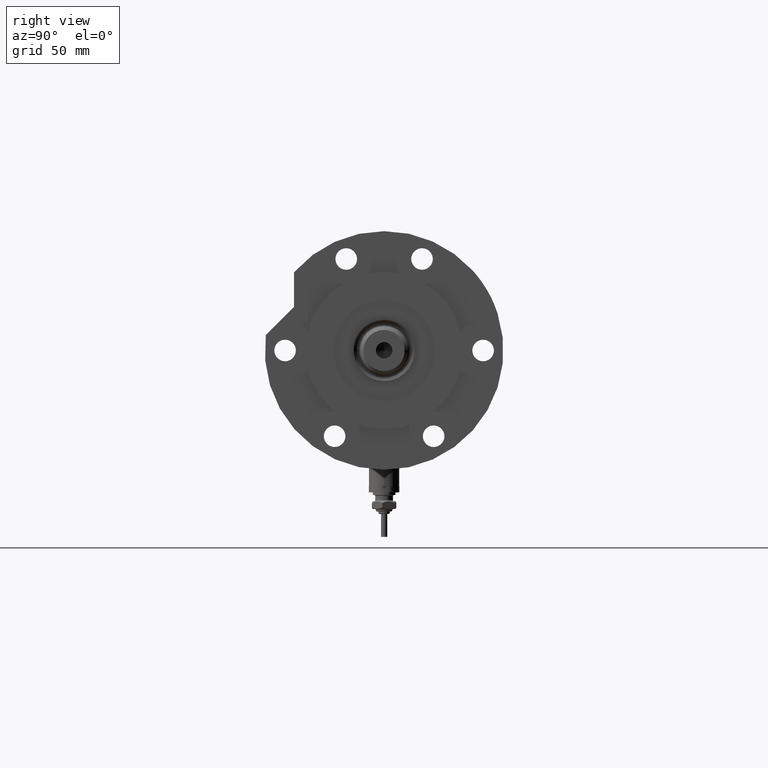
[diagram: clean part render]
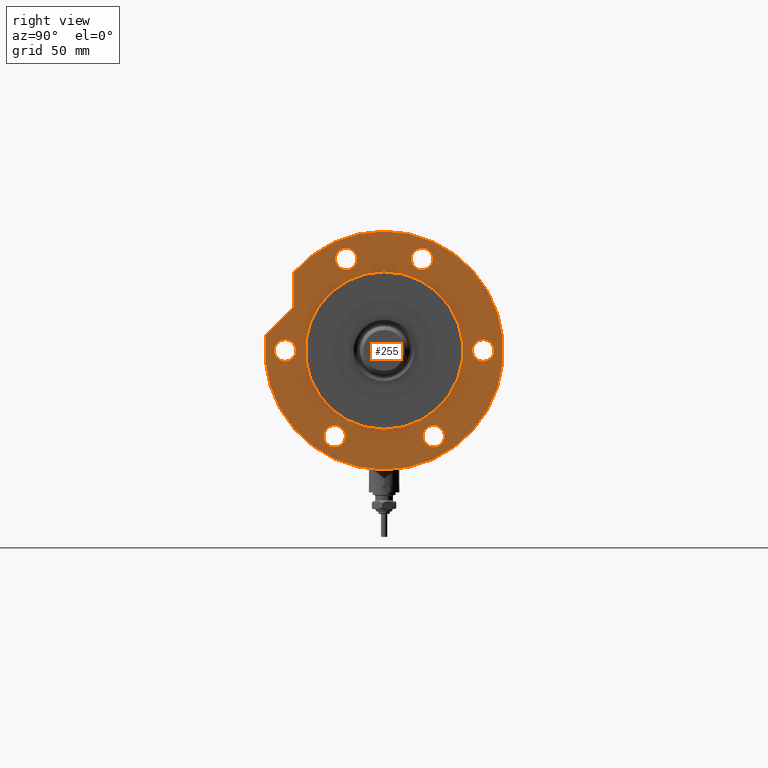
[diagram: same view with one face highlighted and labeled with its STEP entity id]
A machine part, right view. The second image highlights one B-rep face of the part: STEP entity #255.
In plain terms, the highlighted planar face has unit normal (1, 0, -0).
Its self-contained STEP definition (entity closure, byte-faithful):
#44 = CARTESIAN_POINT ( 'NONE',  ( 31.00000000000000711, 3.796405077356795904E-15, 17.00000000000000000 ) ) ;
#67 = AXIS2_PLACEMENT_3D ( 'NONE', #5429, #4180, #5544 ) ;
#92 = AXIS2_PLACEMENT_3D ( 'NONE', #1840, #3734, #3855 ) ;
#167 = EDGE_LOOP ( 'NONE', ( #4337, #3455, #3083, #5923, #3396 ) ) ;
#171 = CARTESIAN_POINT ( 'NONE',  ( 36.03130176794011419, -14.92465386223865842, 17.00000000000000000 ) ) ;
#216 = ORIENTED_EDGE ( 'NONE', *, *, #2151, .F. ) ;
#255 = ADVANCED_FACE ( 'NONE', ( #5977, #7132, #1621, #4109, #7772, #4184, #6621, #6550 ), #5937, .T. ) ;
#260 = DIRECTION ( 'NONE',  ( 0.000000000000000000, 0.000000000000000000, 1.000000000000000000 ) ) ;
#374 = EDGE_CURVE ( 'NONE', #5448, #2583, #6136, .T. ) ;
#405 = CARTESIAN_POINT ( 'NONE',  ( 0.000000000000000000, 0.000000000000000000, 17.00000000000000000 ) ) ;
#410 = DIRECTION ( 'NONE',  ( 1.000000000000000000, -1.019675812477181804E-15, 0.000000000000000000 ) ) ;
#422 = CIRCLE ( 'NONE', #6227, 31.00000000000000711 ) ;
#441 = CIRCLE ( 'NONE', #7247, 4.250000000000003553 ) ;
#445 = CIRCLE ( 'NONE', #1350, 4.250000000000000888 ) ;
#485 = ORIENTED_EDGE ( 'NONE', *, *, #5894, .F. ) ;
#506 = DIRECTION ( 'NONE',  ( 0.000000000000000000, 0.000000000000000000, 1.000000000000000000 ) ) ;
#526 = EDGE_LOOP ( 'NONE', ( #5947, #2553 ) ) ;
#781 = EDGE_CURVE ( 'NONE', #4695, #6623, #1379, .T. ) ;
#799 = DIRECTION ( 'NONE',  ( 0.000000000000000000, 0.000000000000000000, 1.000000000000000000 ) ) ;
#804 = CARTESIAN_POINT ( 'NONE',  ( -38.02499074759315079, 19.49999999999992539, 17.00000000000000000 ) ) ;
#830 = EDGE_LOOP ( 'NONE', ( #1718, #4603 ) ) ;
#942 = LINE ( 'NONE', #1553, #4576 ) ;
#1025 = CARTESIAN_POINT ( 'NONE',  ( 31.78130176794011064, -14.92465386223865842, 17.00000000000000000 ) ) ;
#1071 = VERTEX_POINT ( 'NONE', #2360 ) ;
#1134 = DIRECTION ( 'NONE',  ( 1.000000000000000000, 0.000000000000000000, 0.000000000000000000 ) ) ;
#1253 = VECTOR ( 'NONE', #6881, 999.9999999999998863 ) ;
#1350 = AXIS2_PLACEMENT_3D ( 'NONE', #2649, #5124, #2044 ) ;
#1379 = CIRCLE ( 'NONE', #92, 46.99999999999999289 ) ;
#1454 = EDGE_CURVE ( 'NONE', #7564, #5592, #422, .T. ) ;
#1463 = CIRCLE ( 'NONE', #5599, 4.250000000000003553 ) ;
#1471 = EDGE_CURVE ( 'NONE', #1602, #4695, #2886, .T. ) ;
#1506 = EDGE_CURVE ( 'NONE', #1071, #5062, #942, .T. ) ;
#1553 = CARTESIAN_POINT ( 'NONE',  ( 3.617158501555293296E-14, 35.47361286101151734, 17.00000000000000000 ) ) ;
#1556 = VERTEX_POINT ( 'NONE', #4191 ) ;
#1602 = VERTEX_POINT ( 'NONE', #4233 ) ;
#1621 = FACE_BOUND ( 'NONE', #6460, .T. ) ;
#1655 = EDGE_CURVE ( 'NONE', #1556, #4058, #2627, .T. ) ;
#1702 = EDGE_LOOP ( 'NONE', ( #485, #1721 ) ) ;
#1718 = ORIENTED_EDGE ( 'NONE', *, *, #6191, .F. ) ;
#1721 = ORIENTED_EDGE ( 'NONE', *, *, #374, .F. ) ;
#1786 = ORIENTED_EDGE ( 'NONE', *, *, #5590, .F. ) ;
#1840 = CARTESIAN_POINT ( 'NONE',  ( 0.000000000000000000, 0.000000000000000000, 17.00000000000000000 ) ) ;
#1844 = AXIS2_PLACEMENT_3D ( 'NONE', #3709, #3751, #1134 ) ;
#1984 = DIRECTION ( 'NONE',  ( 0.000000000000000000, 0.000000000000000000, 1.000000000000000000 ) ) ;
#2013 = CARTESIAN_POINT ( 'NONE',  ( 26.34789210900296652, 26.34789210900323297, 17.00000000000000000 ) ) ;
#2044 = DIRECTION ( 'NONE',  ( 1.000000000000000000, 0.000000000000000000, 0.000000000000000000 ) ) ;
#2151 = EDGE_CURVE ( 'NONE', #3817, #5571, #1463, .T. ) ;
#2191 = CARTESIAN_POINT ( 'NONE',  ( 0.000000000000000000, 0.000000000000000000, 17.00000000000000000 ) ) ;
#2268 = AXIS2_PLACEMENT_3D ( 'NONE', #5520, #506, #2986 ) ;
#2333 = CARTESIAN_POINT ( 'NONE',  ( 4.250000000000000888, -39.00000000000000000, 17.00000000000000000 ) ) ;
#2360 = CARTESIAN_POINT ( 'NONE',  ( 17.22217135699461110, 35.47361286101150313, 17.00000000000000000 ) ) ;
#2377 = ORIENTED_EDGE ( 'NONE', *, *, #5375, .F. ) ;
#2522 = ORIENTED_EDGE ( 'NONE', *, *, #1454, .F. ) ;
#2553 = ORIENTED_EDGE ( 'NONE', *, *, #3782, .F. ) ;
#2583 = VERTEX_POINT ( 'NONE', #804 ) ;
#2588 = CARTESIAN_POINT ( 'NONE',  ( -33.77499074759302289, -19.50000000000015277, 17.00000000000000000 ) ) ;
#2627 = CIRCLE ( 'NONE', #1844, 4.250000000000000888 ) ;
#2649 = CARTESIAN_POINT ( 'NONE',  ( 0.000000000000000000, 39.00000000000000000, 17.00000000000000000 ) ) ;
#2799 = DIRECTION ( 'NONE',  ( 0.000000000000000000, 0.000000000000000000, 1.000000000000000000 ) ) ;
#2825 = DIRECTION ( 'NONE',  ( 0.000000000000000000, 0.000000000000000000, 1.000000000000000000 ) ) ;
#2884 = DIRECTION ( 'NONE',  ( 0.000000000000000000, 0.000000000000000000, 1.000000000000000000 ) ) ;
#2886 = CIRCLE ( 'NONE', #7234, 46.99999999999999289 ) ;
#2933 = CARTESIAN_POINT ( 'NONE',  ( 0.000000000000000000, -39.00000000000000000, 17.00000000000000000 ) ) ;
#2964 = VERTEX_POINT ( 'NONE', #6290 ) ;
#2979 = DIRECTION ( 'NONE',  ( 1.000000000000000000, 0.000000000000000000, 0.000000000000000000 ) ) ;
#2986 = DIRECTION ( 'NONE',  ( 1.000000000000000000, 0.000000000000000000, 0.000000000000000000 ) ) ;
#3009 = EDGE_LOOP ( 'NONE', ( #3635, #3112 ) ) ;
#3016 = CARTESIAN_POINT ( 'NONE',  ( 30.83217135699462830, 35.47361286101148892, 17.00000000000000000 ) ) ;
#3083 = ORIENTED_EDGE ( 'NONE', *, *, #1471, .T. ) ;
#3112 = ORIENTED_EDGE ( 'NONE', *, *, #3501, .F. ) ;
#3153 = EDGE_CURVE ( 'NONE', #4967, #3935, #441, .T. ) ;
#3208 = CARTESIAN_POINT ( 'NONE',  ( -31.00000000000000711, 0.000000000000000000, 17.00000000000000000 ) ) ;
#3283 = DIRECTION ( 'NONE',  ( 1.000000000000000000, 0.000000000000000000, 0.000000000000000000 ) ) ;
#3396 = ORIENTED_EDGE ( 'NONE', *, *, #6134, .T. ) ;
#3426 = AXIS2_PLACEMENT_3D ( 'NONE', #2588, #799, #3283 ) ;
#3438 = CIRCLE ( 'NONE', #4087, 31.00000000000000711 ) ;
#3455 = ORIENTED_EDGE ( 'NONE', *, *, #7552, .F. ) ;
#3469 = DIRECTION ( 'NONE',  ( 0.000000000000000000, 0.000000000000000000, 1.000000000000000000 ) ) ;
#3485 = ORIENTED_EDGE ( 'NONE', *, *, #5483, .F. ) ;
#3501 = EDGE_CURVE ( 'NONE', #6873, #7388, #445, .T. ) ;
#3540 = CARTESIAN_POINT ( 'NONE',  ( 31.78130176794011064, 14.92465386223865842, 17.00000000000000000 ) ) ;
#3568 = CIRCLE ( 'NONE', #67, 4.250000000000003553 ) ;
#3575 = CARTESIAN_POINT ( 'NONE',  ( 4.250000000000000888, 39.00000000000000000, 17.00000000000000000 ) ) ;
#3586 = DIRECTION ( 'NONE',  ( 1.000000000000000000, 0.000000000000000000, 0.000000000000000000 ) ) ;
#3628 = DIRECTION ( 'NONE',  ( 0.000000000000000000, 0.000000000000000000, 1.000000000000000000 ) ) ;
#3635 = ORIENTED_EDGE ( 'NONE', *, *, #4140, .F. ) ;
#3709 = CARTESIAN_POINT ( 'NONE',  ( 0.000000000000000000, -39.00000000000000000, 17.00000000000000000 ) ) ;
#3714 = AXIS2_PLACEMENT_3D ( 'NONE', #4833, #4879, #7185 ) ;
#3734 = DIRECTION ( 'NONE',  ( 0.000000000000000000, 0.000000000000000000, 1.000000000000000000 ) ) ;
#3751 = DIRECTION ( 'NONE',  ( 0.000000000000000000, 0.000000000000000000, 1.000000000000000000 ) ) ;
#3782 = EDGE_CURVE ( 'NONE', #4058, #1556, #5496, .T. ) ;
#3817 = VERTEX_POINT ( 'NONE', #3540 ) ;
#3821 = CIRCLE ( 'NONE', #3426, 4.250000000000003553 ) ;
#3855 = DIRECTION ( 'NONE',  ( 1.000000000000000000, 0.000000000000000000, 0.000000000000000000 ) ) ;
#3935 = VERTEX_POINT ( 'NONE', #5745 ) ;
#4058 = VERTEX_POINT ( 'NONE', #2333 ) ;
#4071 = DIRECTION ( 'NONE',  ( 0.000000000000000000, 0.000000000000000000, 1.000000000000000000 ) ) ;
#4087 = AXIS2_PLACEMENT_3D ( 'NONE', #2191, #260, #4106 ) ;
#4106 = DIRECTION ( 'NONE',  ( 1.000000000000000000, 0.000000000000000000, 0.000000000000000000 ) ) ;
#4109 = FACE_BOUND ( 'NONE', #526, .T. ) ;
#4140 = EDGE_CURVE ( 'NONE', #7388, #6873, #5479, .T. ) ;
#4180 = DIRECTION ( 'NONE',  ( 0.000000000000000000, 0.000000000000000000, 1.000000000000000000 ) ) ;
#4184 = FACE_BOUND ( 'NONE', #1702, .T. ) ;
#4191 = CARTESIAN_POINT ( 'NONE',  ( -4.250000000000000888, -39.00000000000000000, 17.00000000000000000 ) ) ;
#4225 = CIRCLE ( 'NONE', #2268, 4.250000000000003553 ) ;
#4233 = CARTESIAN_POINT ( 'NONE',  ( 6.092310621118299352, 46.60347359688769586, 17.00000000000000000 ) ) ;
#4337 = ORIENTED_EDGE ( 'NONE', *, *, #1506, .F. ) ;
#4461 = EDGE_CURVE ( 'NONE', #6929, #2964, #3821, .T. ) ;
#4487 = CARTESIAN_POINT ( 'NONE',  ( -46.99999999999999289, 0.000000000000000000, 17.00000000000000000 ) ) ;
#4576 = VECTOR ( 'NONE', #410, 1000.000000000000000 ) ;
#4603 = ORIENTED_EDGE ( 'NONE', *, *, #4461, .F. ) ;
#4695 = VERTEX_POINT ( 'NONE', #4487 ) ;
#4833 = CARTESIAN_POINT ( 'NONE',  ( 0.000000000000000000, 0.000000000000000000, 17.00000000000000000 ) ) ;
#4879 = DIRECTION ( 'NONE',  ( 0.000000000000000000, 0.000000000000000000, 1.000000000000000000 ) ) ;
#4905 = CARTESIAN_POINT ( 'NONE',  ( -33.77499074759315079, 19.49999999999992539, 17.00000000000000000 ) ) ;
#4967 = VERTEX_POINT ( 'NONE', #1025 ) ;
#5062 = VERTEX_POINT ( 'NONE', #3016 ) ;
#5105 = DIRECTION ( 'NONE',  ( 0.000000000000000000, 0.000000000000000000, 1.000000000000000000 ) ) ;
#5124 = DIRECTION ( 'NONE',  ( 0.000000000000000000, 0.000000000000000000, 1.000000000000000000 ) ) ;
#5190 = CARTESIAN_POINT ( 'NONE',  ( 36.03130176794011419, 14.92465386223865842, 17.00000000000000000 ) ) ;
#5228 = CARTESIAN_POINT ( 'NONE',  ( 46.99999999999999289, 5.755839955992559063E-15, 17.00000000000000000 ) ) ;
#5243 = AXIS2_PLACEMENT_3D ( 'NONE', #2933, #3628, #3586 ) ;
#5287 = CARTESIAN_POINT ( 'NONE',  ( 0.000000000000000000, 0.000000000000000000, 17.00000000000000000 ) ) ;
#5312 = DIRECTION ( 'NONE',  ( 1.000000000000000000, 0.000000000000000000, 0.000000000000000000 ) ) ;
#5352 = DIRECTION ( 'NONE',  ( 1.000000000000000000, 0.000000000000000000, -0.000000000000000000 ) ) ;
#5375 = EDGE_CURVE ( 'NONE', #5592, #7564, #3438, .T. ) ;
#5429 = CARTESIAN_POINT ( 'NONE',  ( 36.03130176794011419, 14.92465386223865842, 17.00000000000000000 ) ) ;
#5435 = CARTESIAN_POINT ( 'NONE',  ( 0.000000000000000000, 0.000000000000000000, 17.00000000000000000 ) ) ;
#5448 = VERTEX_POINT ( 'NONE', #6435 ) ;
#5452 = CARTESIAN_POINT ( 'NONE',  ( 0.000000000000000000, 39.00000000000000000, 17.00000000000000000 ) ) ;
#5479 = CIRCLE ( 'NONE', #5606, 4.250000000000000888 ) ;
#5483 = EDGE_CURVE ( 'NONE', #5571, #3817, #3568, .T. ) ;
#5496 = CIRCLE ( 'NONE', #5243, 4.250000000000000888 ) ;
#5502 = CARTESIAN_POINT ( 'NONE',  ( -29.52499074759301578, -19.50000000000015277, 17.00000000000000000 ) ) ;
#5520 = CARTESIAN_POINT ( 'NONE',  ( -33.77499074759302289, -19.50000000000015277, 17.00000000000000000 ) ) ;
#5544 = DIRECTION ( 'NONE',  ( 1.000000000000000000, 0.000000000000000000, 0.000000000000000000 ) ) ;
#5571 = VERTEX_POINT ( 'NONE', #6306 ) ;
#5590 = EDGE_CURVE ( 'NONE', #3935, #4967, #7138, .T. ) ;
#5592 = VERTEX_POINT ( 'NONE', #44 ) ;
#5599 = AXIS2_PLACEMENT_3D ( 'NONE', #5190, #1984, #6941 ) ;
#5606 = AXIS2_PLACEMENT_3D ( 'NONE', #5452, #7753, #7199 ) ;
#5745 = CARTESIAN_POINT ( 'NONE',  ( 40.28130176794012129, -14.92465386223865842, 17.00000000000000000 ) ) ;
#5758 = CIRCLE ( 'NONE', #3714, 46.99999999999999289 ) ;
#5873 = AXIS2_PLACEMENT_3D ( 'NONE', #7088, #2799, #5312 ) ;
#5894 = EDGE_CURVE ( 'NONE', #2583, #5448, #6518, .T. ) ;
#5908 = DIRECTION ( 'NONE',  ( 1.000000000000000000, 0.000000000000000000, 0.000000000000000000 ) ) ;
#5923 = ORIENTED_EDGE ( 'NONE', *, *, #781, .T. ) ;
#5937 = PLANE ( 'NONE',  #7403 ) ;
#5947 = ORIENTED_EDGE ( 'NONE', *, *, #1655, .F. ) ;
#5977 = FACE_BOUND ( 'NONE', #3009, .T. ) ;
#6134 = EDGE_CURVE ( 'NONE', #6623, #5062, #5758, .T. ) ;
#6136 = CIRCLE ( 'NONE', #6527, 4.249999999999996447 ) ;
#6182 = DIRECTION ( 'NONE',  ( 0.000000000000000000, 0.000000000000000000, 1.000000000000000000 ) ) ;
#6191 = EDGE_CURVE ( 'NONE', #2964, #6929, #4225, .T. ) ;
#6208 = CARTESIAN_POINT ( 'NONE',  ( -4.250000000000000888, 39.00000000000000000, 17.00000000000000000 ) ) ;
#6227 = AXIS2_PLACEMENT_3D ( 'NONE', #5287, #4071, #2979 ) ;
#6290 = CARTESIAN_POINT ( 'NONE',  ( -38.02499074759302289, -19.50000000000015277, 17.00000000000000000 ) ) ;
#6306 = CARTESIAN_POINT ( 'NONE',  ( 40.28130176794012129, 14.92465386223865842, 17.00000000000000000 ) ) ;
#6435 = CARTESIAN_POINT ( 'NONE',  ( -29.52499074759315434, 19.49999999999992539, 17.00000000000000000 ) ) ;
#6460 = EDGE_LOOP ( 'NONE', ( #6850, #1786 ) ) ;
#6484 = DIRECTION ( 'NONE',  ( 1.000000000000000000, 0.000000000000000000, 0.000000000000000000 ) ) ;
#6518 = CIRCLE ( 'NONE', #5873, 4.249999999999996447 ) ;
#6527 = AXIS2_PLACEMENT_3D ( 'NONE', #4905, #6182, #7413 ) ;
#6550 = FACE_BOUND ( 'NONE', #7219, .T. ) ;
#6621 = FACE_OUTER_BOUND ( 'NONE', #167, .T. ) ;
#6623 = VERTEX_POINT ( 'NONE', #5228 ) ;
#6850 = ORIENTED_EDGE ( 'NONE', *, *, #3153, .F. ) ;
#6855 = DIRECTION ( 'NONE',  ( 1.000000000000000000, 0.000000000000000000, 0.000000000000000000 ) ) ;
#6873 = VERTEX_POINT ( 'NONE', #3575 ) ;
#6881 = DIRECTION ( 'NONE',  ( 0.7071067811865511255, -0.7071067811865440200, 0.000000000000000000 ) ) ;
#6929 = VERTEX_POINT ( 'NONE', #5502 ) ;
#6941 = DIRECTION ( 'NONE',  ( 1.000000000000000000, 0.000000000000000000, 0.000000000000000000 ) ) ;
#7034 = CARTESIAN_POINT ( 'NONE',  ( 36.03130176794011419, -14.92465386223865842, 17.00000000000000000 ) ) ;
#7088 = CARTESIAN_POINT ( 'NONE',  ( -33.77499074759315079, 19.49999999999992539, 17.00000000000000000 ) ) ;
#7132 = FACE_BOUND ( 'NONE', #7345, .T. ) ;
#7138 = CIRCLE ( 'NONE', #7778, 4.250000000000003553 ) ;
#7185 = DIRECTION ( 'NONE',  ( 1.000000000000000000, 0.000000000000000000, 0.000000000000000000 ) ) ;
#7199 = DIRECTION ( 'NONE',  ( 1.000000000000000000, 0.000000000000000000, 0.000000000000000000 ) ) ;
#7219 = EDGE_LOOP ( 'NONE', ( #2522, #2377 ) ) ;
#7234 = AXIS2_PLACEMENT_3D ( 'NONE', #5435, #3469, #5908 ) ;
#7247 = AXIS2_PLACEMENT_3D ( 'NONE', #7034, #2825, #6484 ) ;
#7345 = EDGE_LOOP ( 'NONE', ( #216, #3485 ) ) ;
#7388 = VERTEX_POINT ( 'NONE', #6208 ) ;
#7403 = AXIS2_PLACEMENT_3D ( 'NONE', #405, #2884, #5352 ) ;
#7413 = DIRECTION ( 'NONE',  ( 1.000000000000000000, 0.000000000000000000, 0.000000000000000000 ) ) ;
#7515 = LINE ( 'NONE', #2013, #1253 ) ;
#7552 = EDGE_CURVE ( 'NONE', #1602, #1071, #7515, .T. ) ;
#7564 = VERTEX_POINT ( 'NONE', #3208 ) ;
#7753 = DIRECTION ( 'NONE',  ( 0.000000000000000000, 0.000000000000000000, 1.000000000000000000 ) ) ;
#7772 = FACE_BOUND ( 'NONE', #830, .T. ) ;
#7778 = AXIS2_PLACEMENT_3D ( 'NONE', #171, #5105, #6855 ) ;